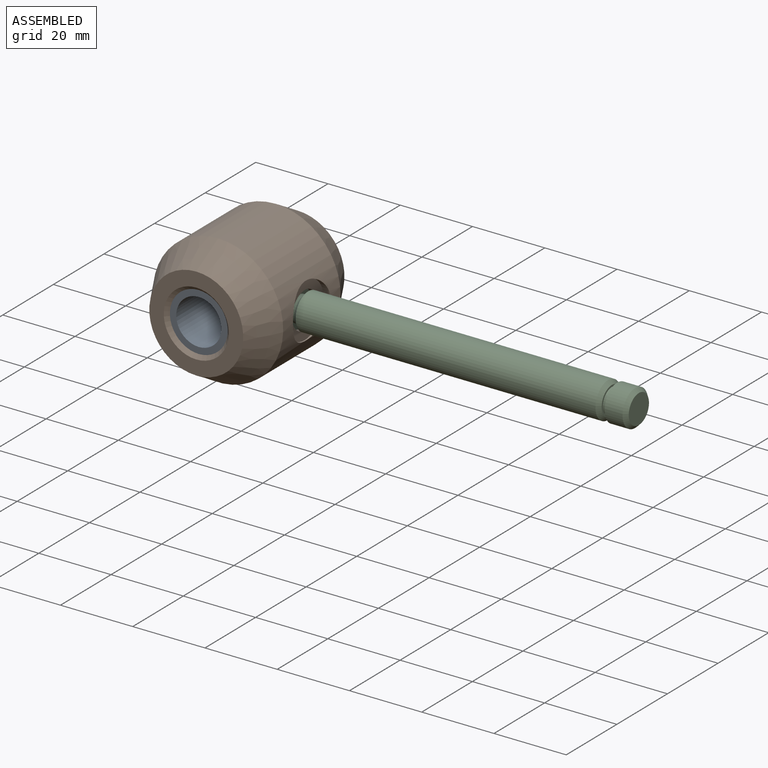
[diagram: assembled view]
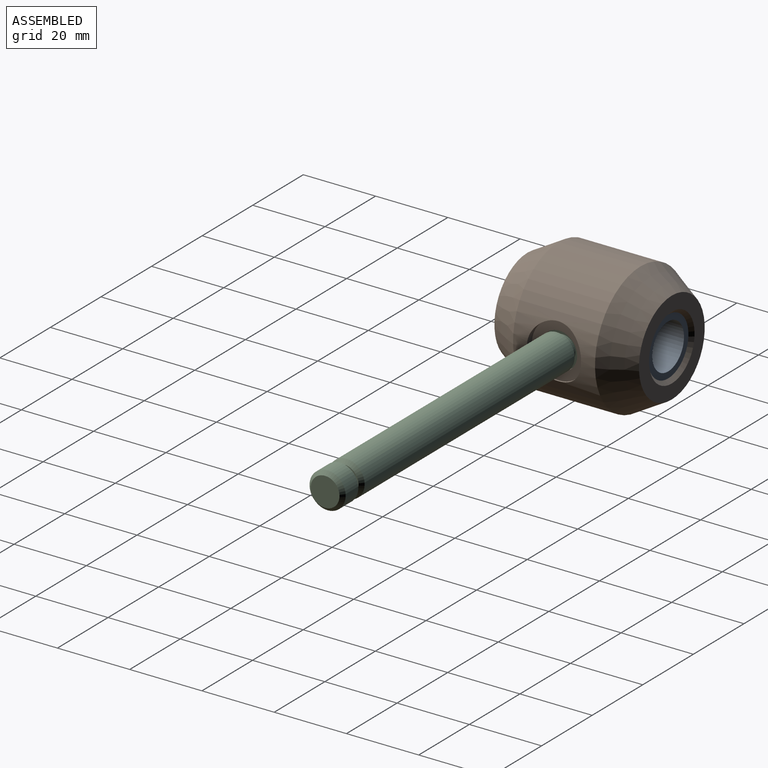
[diagram: assembled view, second angle]
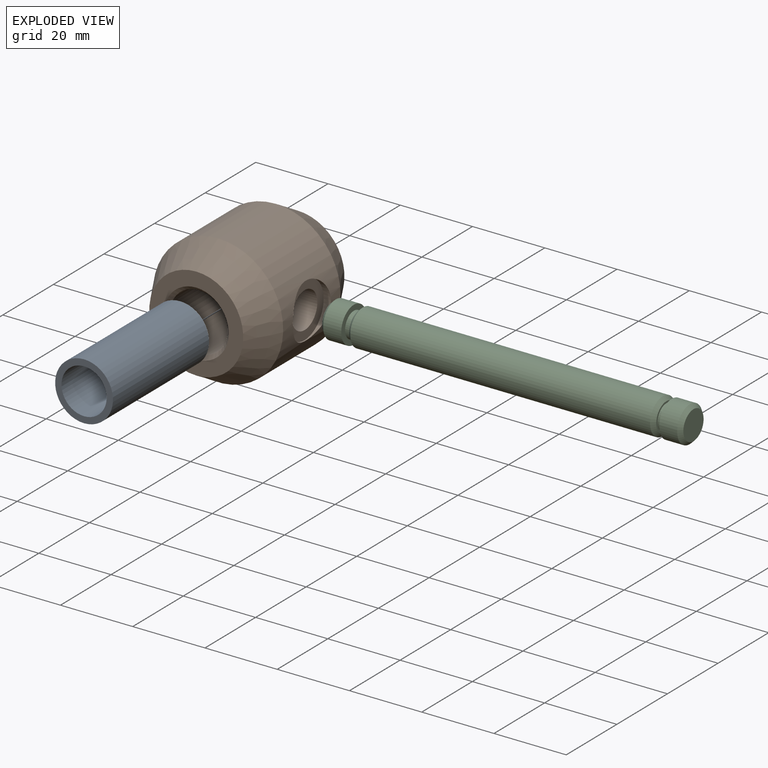
[diagram: exploded view]
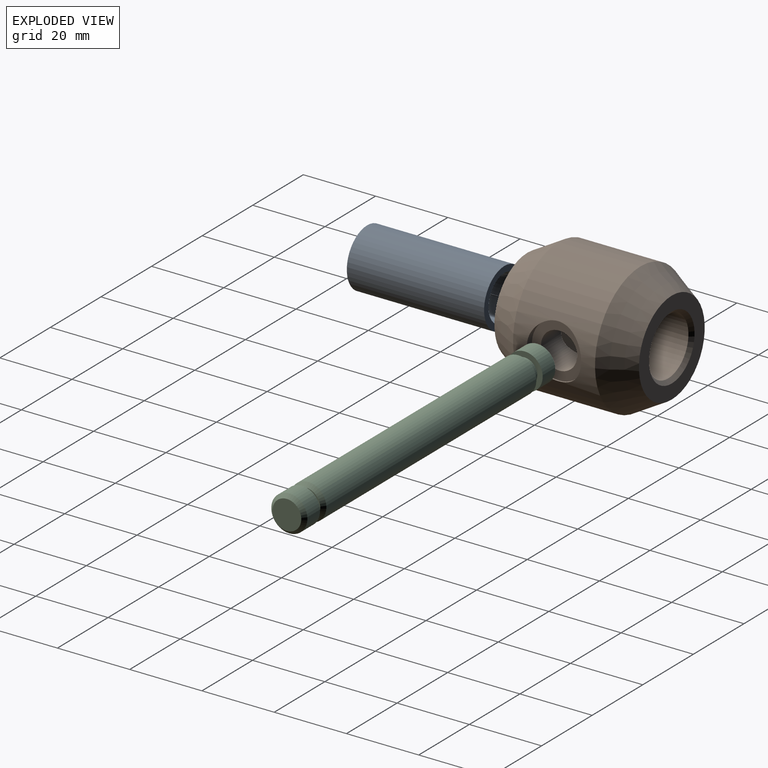
[diagram: exploded view, second angle]
ASSEMBLY  parts=3 mates=2
PART A: 4 faces, bbox 16x16x38 mm
  f0: cylinder r=6.25mm len=38mm, axis (0,0,-1), area 1492.3mm2, adj f2,f3
  f1: cylinder r=8mm len=38mm, axis (0,0,-1), area 1910.1mm2, adj f2,f3
  f2: plane 16x16mm, normal (0,0,1), area 78.3mm2, adj f0,f1
  f3: plane 16x16mm, normal (0,0,-1), area 78.3mm2, adj f0,f1
PART B: 11 faces, bbox 36x40x36 mm
  f0: cylinder r=18mm len=36mm, axis (0,1,0), area 2384.1mm2, adj f5,f9,f10
  f1: cylinder r=8mm len=38mm, axis (0,1,0), area 1827mm2, adj f4,f7,f8
  f2: plane 26x26mm, normal (0,-1,0), area 276.5mm2, adj f8,f10
  f3: plane 26x26mm, normal (0,1,0), area 276.5mm2, adj f7,f9
  f4: cylinder r=5mm len=10mm, axis (1,0,0), area 278mm2, adj f1,f6
  f5: cylinder r=7.5mm len=15mm, axis (-1,0,0), area 56.1mm2, adj f0,f6
  f6: plane 15x15mm, normal (-1,0,0), area 98.2mm2, adj f4,f5
  f7: cone r=9mm half-angle=45deg, axis (0,1,0), area 75.5mm2, adj f1,f3
  f8: cone r=8mm half-angle=45deg, axis (0,-1,0), area 75.5mm2, adj f1,f2
  f9: cone r=18mm half-angle=30deg, axis (0,-1,0), area 973.9mm2, adj f0,f3
  f10: cone r=13mm half-angle=30deg, axis (0,1,0), area 973.9mm2, adj f0,f2
PART C: 15 faces, bbox 100x10x10 mm
  f0: cylinder r=5mm len=83mm, axis (-1,0,0), area 2607.5mm2, adj f11,f13
  f1: plane 8x8mm, normal (-1,0,0), area 11.8mm2, adj f2,f13
  f2: cylinder r=3.5mm len=7mm, axis (-1,0,0), area 33mm2, adj f1,f3
  f3: plane 10x10mm, normal (1,0,0), area 40.1mm2, adj f2,f4
  f4: cylinder r=5mm len=10mm, axis (-1,0,0), area 157.1mm2, adj f3,f14
  f5: plane 8x8mm, normal (-1,0,0), area 50.3mm2, adj f14
  f6: plane 8x8mm, normal (1,0,0), area 50.3mm2, adj f12
  f7: cylinder r=5mm len=10mm, axis (-1,0,0), area 157.1mm2, adj f8,f12
  f8: plane 10x10mm, normal (-1,0,0), area 40.1mm2, adj f7,f9
  f9: cylinder r=3.5mm len=7mm, axis (-1,0,0), area 33mm2, adj f8,f10
  f10: plane 8x8mm, normal (1,0,0), area 11.8mm2, adj f9,f11
  f11: cone r=5mm half-angle=45deg, axis (-1,0,0), area 40mm2, adj f0,f10
  f12: cone r=5mm half-angle=45deg, axis (-1,0,0), area 40mm2, adj f6,f7
  f13: cone r=4mm half-angle=45deg, axis (1,0,0), area 40mm2, adj f0,f1
  f14: cone r=4mm half-angle=45deg, axis (1,0,0), area 40mm2, adj f4,f5
PLACE A rot(axis=(0.94,0.25,-0.25),93.8deg) t=(-96.81,6.26,-0.75)mm
PLACE B rot(axis=(0,1,0),180deg) t=(-96.81,26.26,-0.75)mm
PLACE C t=(-5.16,6.26,-0.75)mm fixed
MATE revolute C.f0 <-> B.f4  axis (-1,0,0) through (-80.81,6.26,-0.75)mm
MATE revolute A.f0 <-> B.f0  axis (0,-1,0) through (-96.81,-12.74,-0.75)mm
